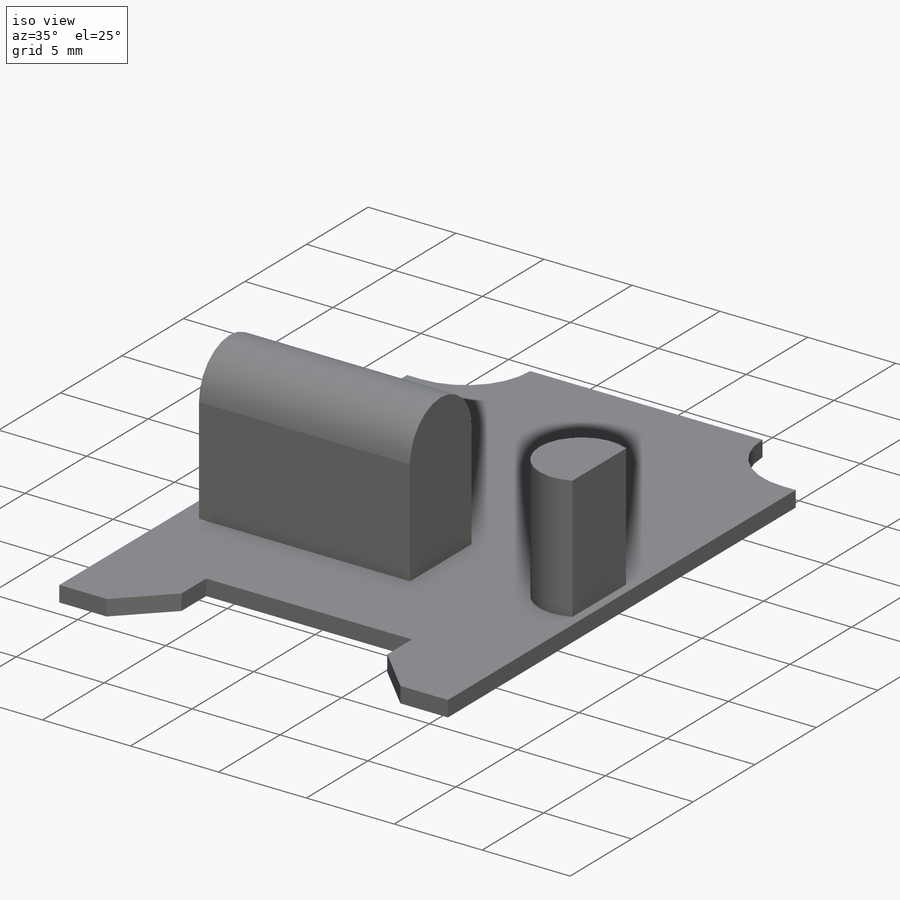
[diagram: iso view]
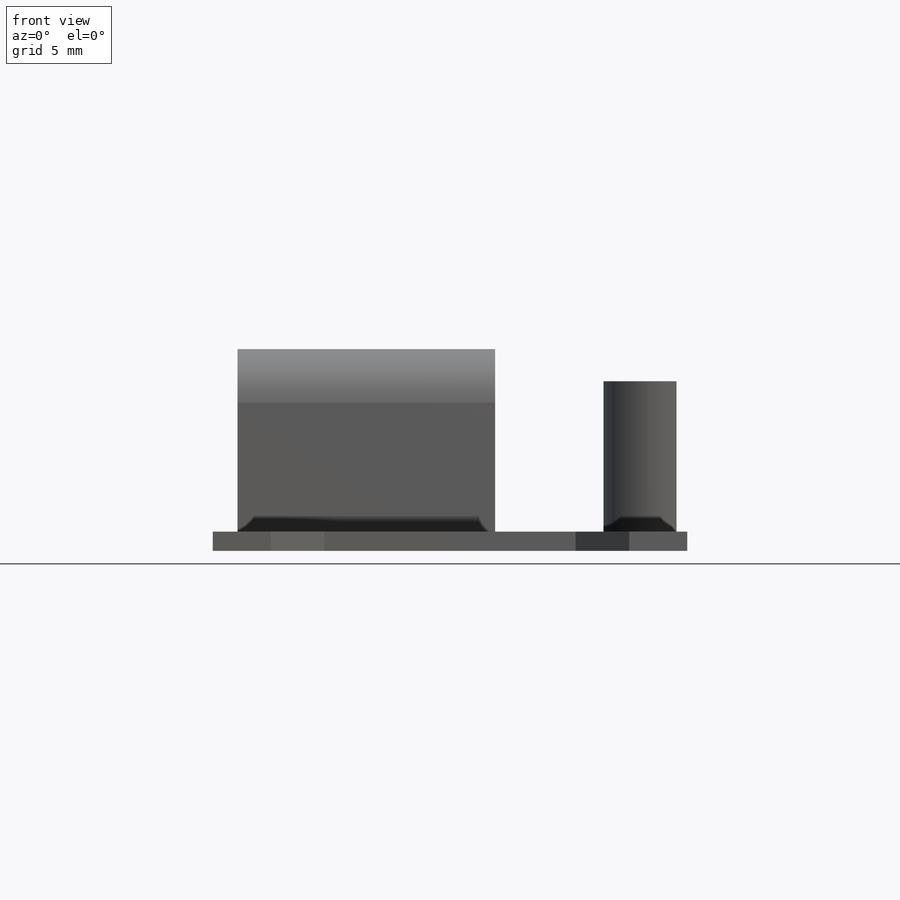
[diagram: front view]
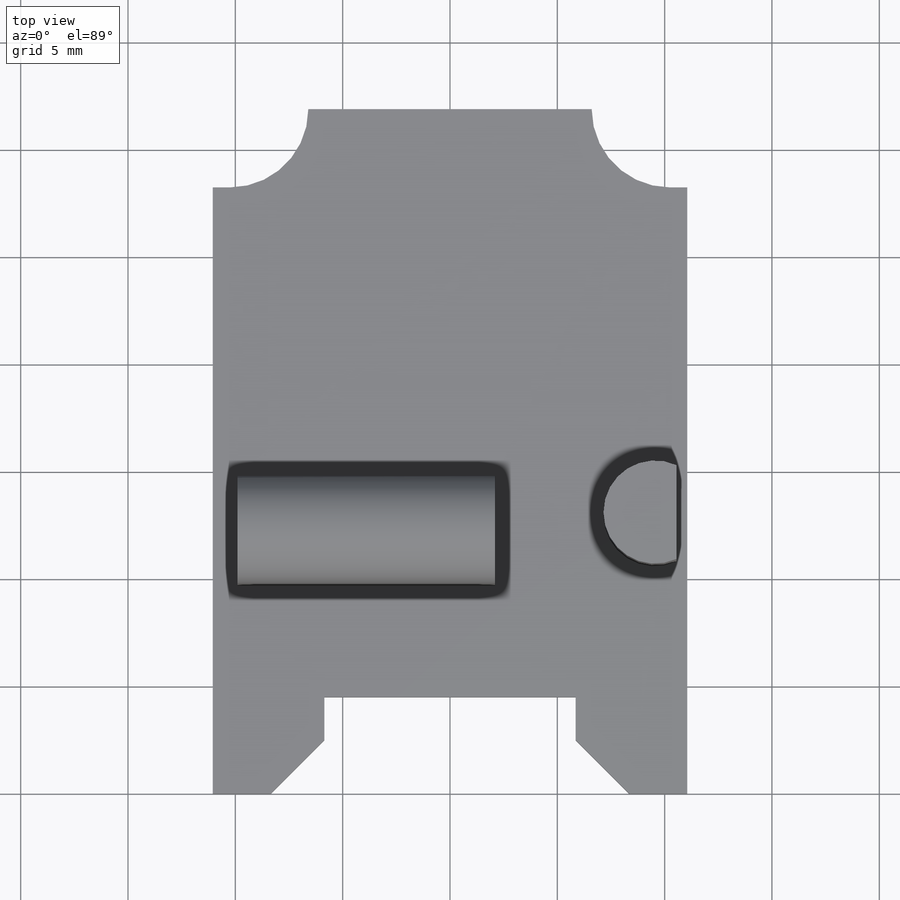
[diagram: top view]
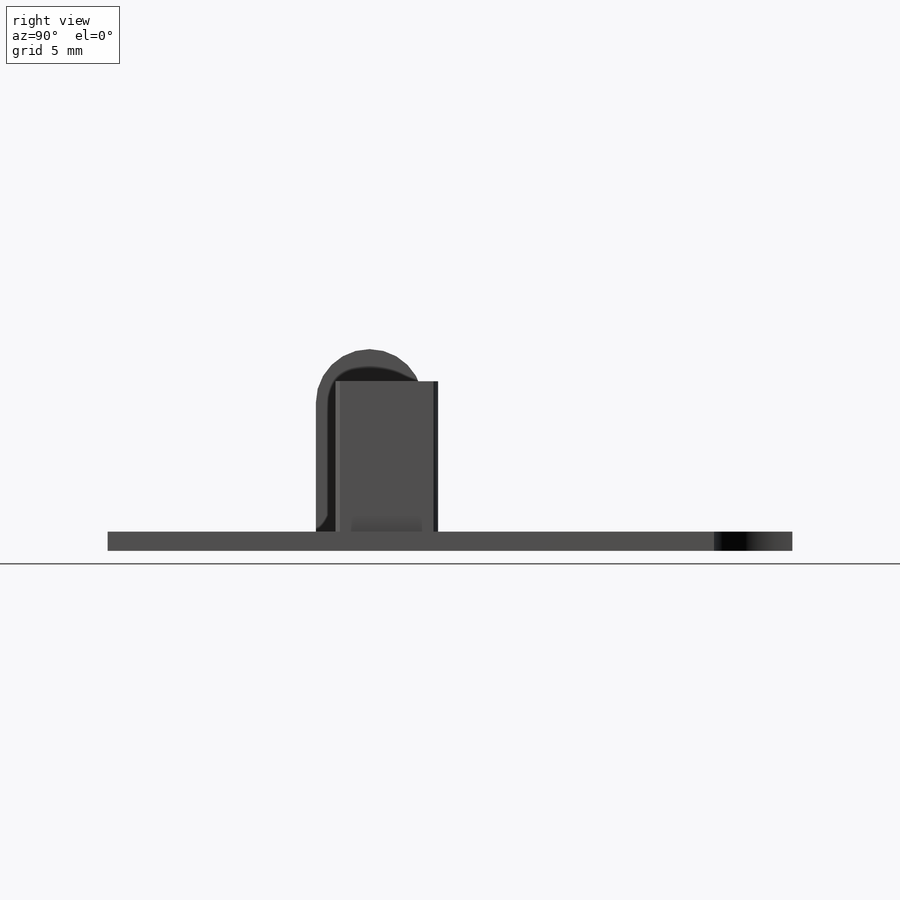
[diagram: right view]
SOLIDWORKS PART (.sldprt)
format: sldprt  version: not decoded by parser v0  size: 468,992 bytes
history: native  units: mm
features: sketch x5, extrude x5, material x1, pattern_linear x1, plane x1 (+16 scaffold rows collapsed)
feature tree (29):
  scaffold x16  (default folders/planes/origin — collapsed)
  material  "Material <not specified>"
  sketch  "Sketch1"  dims[c1.D1=11.05mm c1.D2=28.25mm c1.D3=6.6mm c1.D4=31.9mm c1.D5=5.2mm c1.D6=~2.180012mm c2.D6=135.0deg c2.D7=4.5mm c2.D8=2.5mm]
  extrude  "Boss-Extrude1"  Depth=0.9mm
  sketch  "Sketch2"  dims[c1.D1=~0.740623mm c2.D1=135.0deg c2.D2=9.9mm c2.D3=4.7mm c2.D4=1.0mm c2.D5=0.5mm]
  extrude  "Boss-Extrude2"  Depth=6mm
  pattern_linear  "LPattern1"  Count1=2 Count2=1 Spacing1=9.9mm Spacing2=10mm
  sketch  "Sketch3"  dims[D3=2.4mm D1=0.5mm D2=1.0mm D4=13.0mm]
  extrude  "Boss-Extrude3"  Depth=7mm
  plane  "Plane1"  Offset=1.15mm
  sketch  "Sketch4"  dims[D2=2.5mm D1=8.5mm D3=9.7mm]
  extrude  "Boss-Extrude4"  Depth=12mm
  sketch  "Sketch5"  dims[D2=2.4mm D1=13.0mm D3=1.0mm D4=0.5mm]
  extrude  "Boss-Extrude5"  Depth=7mm
decode coverage: 11 of 11 modeling features carry decoded parameters
note: ~ marks probable driven/reference dimensions
note: suppression state not decoded; provenance and decode notes live in map.json
